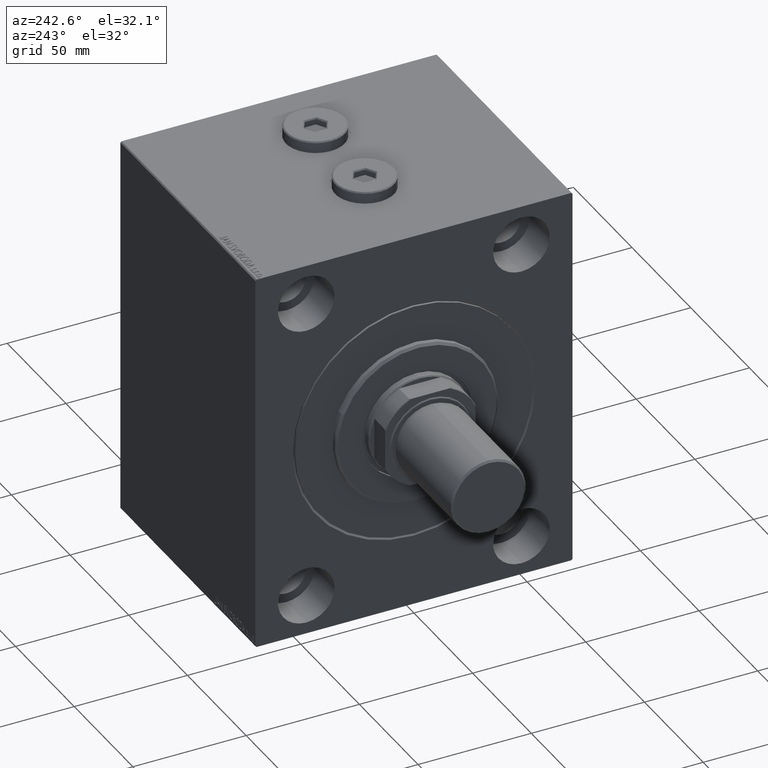
[diagram: clean part render]
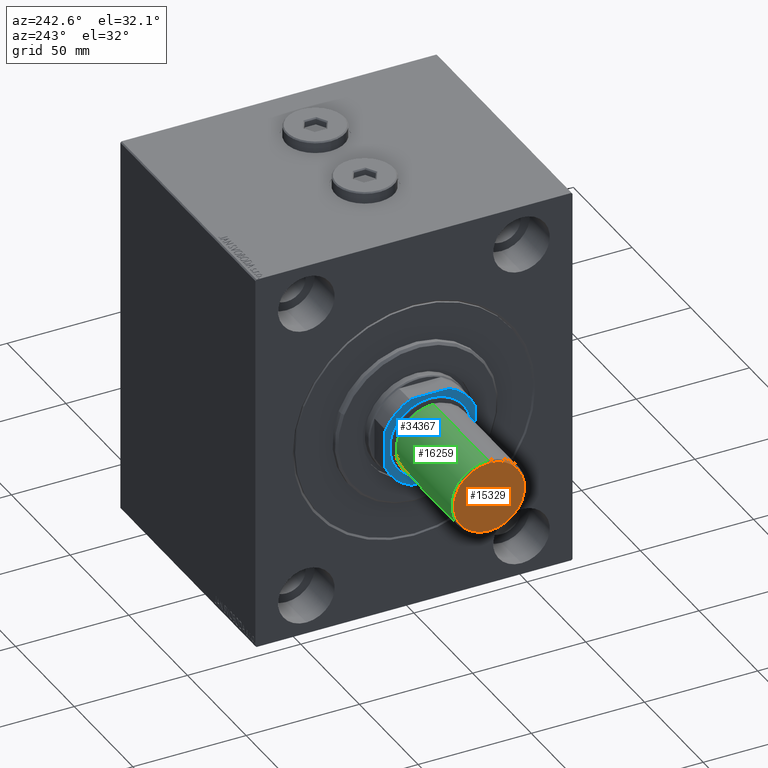
[diagram: same view with three faces highlighted in distinct colors, each labeled with its STEP entity id]
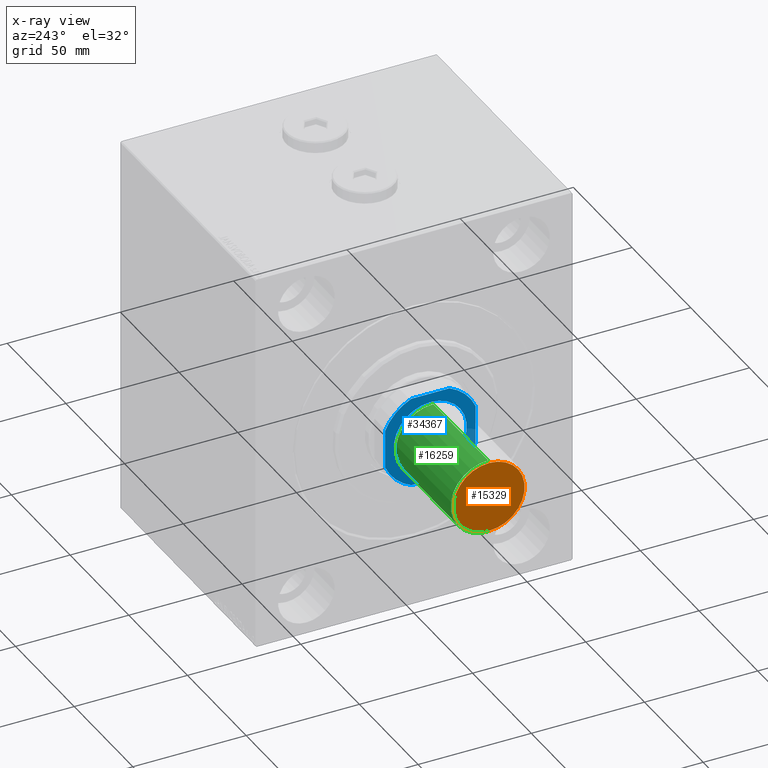
[diagram: x-ray of the same camera — body ghosted, the three highlighted faces saturated]
A machine part, auxiliary view with three faces highlighted in distinct colors.
The next image is the same camera in x-ray (body ghosted, the three faces saturated) — at least one of them is partly hidden behind the body in this view.
Their STEP definitions:

[orange] entity #15329 — the highlighted planar face has unit normal (1, 0, 0).
#1864 = FACE_OUTER_BOUND ( 'NONE', #21280, .T. ) ;
#2542 = DIRECTION ( 'NONE',  ( -0.000000000000000000, -0.000000000000000000, -1.000000000000000000 ) ) ;
#2770 = DIRECTION ( 'NONE',  ( 1.000000000000000000, 0.000000000000000000, 0.000000000000000000 ) ) ;
#8777 = CARTESIAN_POINT ( 'NONE',  ( 0.000000000000000000, 0.000000000000000000, 0.000000000000000000 ) ) ;
#8790 = ORIENTED_EDGE ( 'NONE', *, *, #23588, .T. ) ;
#8874 = VERTEX_POINT ( 'NONE', #23127 ) ;
#8967 = DIRECTION ( 'NONE',  ( -0.000000000000000000, -0.000000000000000000, -1.000000000000000000 ) ) ;
#10523 = VERTEX_POINT ( 'NONE', #27399 ) ;
#12698 = CIRCLE ( 'NONE', #16387, 15.69999999999999929 ) ;
#15153 = AXIS2_PLACEMENT_3D ( 'NONE', #8777, #26318, #15471 ) ;
#15329 = ADVANCED_FACE ( 'NONE', ( #1864 ), #32775, .F. ) ;
#15471 = DIRECTION ( 'NONE',  ( 1.000000000000000000, 0.000000000000000000, -0.000000000000000000 ) ) ;
#16387 = AXIS2_PLACEMENT_3D ( 'NONE', #22350, #8967, #39863 ) ;
#17013 = CIRCLE ( 'NONE', #18445, 15.69999999999999929 ) ;
#18445 = AXIS2_PLACEMENT_3D ( 'NONE', #34135, #2542, #2770 ) ;
#21280 = EDGE_LOOP ( 'NONE', ( #8790, #33888 ) ) ;
#22350 = CARTESIAN_POINT ( 'NONE',  ( 0.000000000000000000, 0.000000000000000000, 0.000000000000000000 ) ) ;
#23127 = CARTESIAN_POINT ( 'NONE',  ( 15.69999999999999929, 0.000000000000000000, 0.000000000000000000 ) ) ;
#23588 = EDGE_CURVE ( 'NONE', #8874, #10523, #17013, .T. ) ;
#26318 = DIRECTION ( 'NONE',  ( 0.000000000000000000, 0.000000000000000000, 1.000000000000000000 ) ) ;
#27399 = CARTESIAN_POINT ( 'NONE',  ( -15.69999999999999929, 1.971681346627238883E-15, 0.000000000000000000 ) ) ;
#28955 = EDGE_CURVE ( 'NONE', #10523, #8874, #12698, .T. ) ;
#32775 = PLANE ( 'NONE',  #15153 ) ;
#33888 = ORIENTED_EDGE ( 'NONE', *, *, #28955, .T. ) ;
#34135 = CARTESIAN_POINT ( 'NONE',  ( 0.000000000000000000, 0.000000000000000000, 0.000000000000000000 ) ) ;
#39863 = DIRECTION ( 'NONE',  ( 1.000000000000000000, 0.000000000000000000, 0.000000000000000000 ) ) ;

[blue] entity #34367 — the highlighted planar face has unit normal (-1, 0, 0).
#373 = EDGE_CURVE ( 'NONE', #1283, #32063, #24441, .T. ) ;
#1283 = VERTEX_POINT ( 'NONE', #17167 ) ;
#1385 = CARTESIAN_POINT ( 'NONE',  ( 16.04999999999996874, 0.000000000000000000, 64.99999999999998579 ) ) ;
#1919 = VECTOR ( 'NONE', #25470, 1000.000000000000000 ) ;
#2042 = EDGE_CURVE ( 'NONE', #22456, #21518, #8991, .T. ) ;
#4948 = LINE ( 'NONE', #43429, #1919 ) ;
#5549 = ORIENTED_EDGE ( 'NONE', *, *, #2042, .T. ) ;
#5974 = PLANE ( 'NONE',  #28323 ) ;
#6061 = DIRECTION ( 'NONE',  ( 1.000000000000000000, 0.000000000000000000, 0.000000000000000000 ) ) ;
#6146 = AXIS2_PLACEMENT_3D ( 'NONE', #44585, #41138, #36981 ) ;
#6435 = FACE_OUTER_BOUND ( 'NONE', #37888, .T. ) ;
#6673 = DIRECTION ( 'NONE',  ( -0.000000000000000000, 0.000000000000000000, 1.000000000000000000 ) ) ;
#7609 = CIRCLE ( 'NONE', #38517, 16.04999999999996874 ) ;
#8991 = CIRCLE ( 'NONE', #20775, 21.70000000000001705 ) ;
#9336 = EDGE_LOOP ( 'NONE', ( #16907, #13640 ) ) ;
#9438 = CARTESIAN_POINT ( 'NONE',  ( 0.000000000000000000, 0.000000000000000000, 64.99999999999998579 ) ) ;
#10134 = CARTESIAN_POINT ( 'NONE',  ( 0.000000000000000000, 0.000000000000000000, 64.99999999999998579 ) ) ;
#10153 = LINE ( 'NONE', #24218, #33660 ) ;
#10689 = EDGE_CURVE ( 'NONE', #43105, #36121, #31947, .T. ) ;
#10867 = CARTESIAN_POINT ( 'NONE',  ( -20.00000000000000000, -8.419619943916748284, 64.99999999999998579 ) ) ;
#11258 = ORIENTED_EDGE ( 'NONE', *, *, #373, .T. ) ;
#12140 = VERTEX_POINT ( 'NONE', #1385 ) ;
#12176 = CARTESIAN_POINT ( 'NONE',  ( 0.000000000000000000, 0.000000000000000000, 64.99999999999998579 ) ) ;
#13383 = AXIS2_PLACEMENT_3D ( 'NONE', #12176, #39616, #40307 ) ;
#13531 = VERTEX_POINT ( 'NONE', #39502 ) ;
#13640 = ORIENTED_EDGE ( 'NONE', *, *, #34898, .T. ) ;
#13696 = CARTESIAN_POINT ( 'NONE',  ( -8.419619943916726967, -20.00000000000001066, 64.99999999999998579 ) ) ;
#14780 = CARTESIAN_POINT ( 'NONE',  ( -20.00000000000000711, 19.99999999999998934, 64.99999999999998579 ) ) ;
#15174 = EDGE_CURVE ( 'NONE', #13531, #34965, #37214, .T. ) ;
#15490 = DIRECTION ( 'NONE',  ( 2.602085213965210642E-16, -1.000000000000000000, 0.000000000000000000 ) ) ;
#16802 = EDGE_CURVE ( 'NONE', #21518, #1283, #4948, .T. ) ;
#16907 = ORIENTED_EDGE ( 'NONE', *, *, #35550, .T. ) ;
#17167 = CARTESIAN_POINT ( 'NONE',  ( 8.419619943916702098, -20.00000000000001066, 64.99999999999998579 ) ) ;
#18214 = ORIENTED_EDGE ( 'NONE', *, *, #44715, .T. ) ;
#18679 = VECTOR ( 'NONE', #15490, 1000.000000000000000 ) ;
#18821 = CARTESIAN_POINT ( 'NONE',  ( 0.000000000000000000, 0.000000000000000000, 64.99999999999998579 ) ) ;
#19841 = CARTESIAN_POINT ( 'NONE',  ( 20.00000000000000000, -8.419619943916732296, 64.99999999999998579 ) ) ;
#20074 = CARTESIAN_POINT ( 'NONE',  ( -20.00000000000000711, 19.99999999999998934, 64.99999999999998579 ) ) ;
#20273 = CARTESIAN_POINT ( 'NONE',  ( 0.000000000000000000, 0.000000000000000000, 64.99999999999998579 ) ) ;
#20438 = VERTEX_POINT ( 'NONE', #28101 ) ;
#20731 = DIRECTION ( 'NONE',  ( 1.000000000000000000, 0.000000000000000000, 0.000000000000000000 ) ) ;
#20775 = AXIS2_PLACEMENT_3D ( 'NONE', #10134, #6673, #20731 ) ;
#21464 = LINE ( 'NONE', #14780, #30669 ) ;
#21518 = VERTEX_POINT ( 'NONE', #13696 ) ;
#22456 = VERTEX_POINT ( 'NONE', #10867 ) ;
#23498 = DIRECTION ( 'NONE',  ( 1.000000000000000000, 0.000000000000000000, 0.000000000000000000 ) ) ;
#24218 = CARTESIAN_POINT ( 'NONE',  ( 19.99999999999999289, 19.99999999999999289, 64.99999999999998579 ) ) ;
#24441 = CIRCLE ( 'NONE', #13383, 21.70000000000000639 ) ;
#25447 = AXIS2_PLACEMENT_3D ( 'NONE', #27513, #27284, #6061 ) ;
#25470 = DIRECTION ( 'NONE',  ( 1.000000000000000000, 0.000000000000000000, 0.000000000000000000 ) ) ;
#27284 = DIRECTION ( 'NONE',  ( -0.000000000000000000, 0.000000000000000000, 1.000000000000000000 ) ) ;
#27513 = CARTESIAN_POINT ( 'NONE',  ( 0.000000000000000000, 0.000000000000000000, 64.99999999999998579 ) ) ;
#27649 = ORIENTED_EDGE ( 'NONE', *, *, #32929, .T. ) ;
#28101 = CARTESIAN_POINT ( 'NONE',  ( -16.04999999999996874, 1.965558112631497866E-15, 64.99999999999998579 ) ) ;
#28323 = AXIS2_PLACEMENT_3D ( 'NONE', #9438, #34555, #23498 ) ;
#29140 = CARTESIAN_POINT ( 'NONE',  ( 8.419619943916742955, 19.99999999999999289, 64.99999999999998579 ) ) ;
#29214 = DIRECTION ( 'NONE',  ( -0.000000000000000000, 0.000000000000000000, 1.000000000000000000 ) ) ;
#29522 = ORIENTED_EDGE ( 'NONE', *, *, #43255, .T. ) ;
#30022 = LINE ( 'NONE', #20074, #18679 ) ;
#30669 = VECTOR ( 'NONE', #36442, 1000.000000000000000 ) ;
#31229 = AXIS2_PLACEMENT_3D ( 'NONE', #18821, #29214, #39107 ) ;
#31631 = ORIENTED_EDGE ( 'NONE', *, *, #16802, .T. ) ;
#31947 = CIRCLE ( 'NONE', #31229, 21.70000000000000639 ) ;
#32063 = VERTEX_POINT ( 'NONE', #19841 ) ;
#32929 = EDGE_CURVE ( 'NONE', #34965, #22456, #30022, .T. ) ;
#33660 = VECTOR ( 'NONE', #38500, 1000.000000000000000 ) ;
#34343 = DIRECTION ( 'NONE',  ( 0.000000000000000000, -0.000000000000000000, -1.000000000000000000 ) ) ;
#34367 = ADVANCED_FACE ( 'NONE', ( #41017, #6435 ), #5974, .T. ) ;
#34555 = DIRECTION ( 'NONE',  ( -0.000000000000000000, 0.000000000000000000, 1.000000000000000000 ) ) ;
#34898 = EDGE_CURVE ( 'NONE', #20438, #12140, #36302, .T. ) ;
#34965 = VERTEX_POINT ( 'NONE', #35571 ) ;
#35018 = DIRECTION ( 'NONE',  ( 1.000000000000000000, 0.000000000000000000, 0.000000000000000000 ) ) ;
#35550 = EDGE_CURVE ( 'NONE', #12140, #20438, #7609, .T. ) ;
#35571 = CARTESIAN_POINT ( 'NONE',  ( -20.00000000000000355, 8.419619943916735849, 64.99999999999998579 ) ) ;
#35691 = ORIENTED_EDGE ( 'NONE', *, *, #10689, .T. ) ;
#36121 = VERTEX_POINT ( 'NONE', #29140 ) ;
#36302 = CIRCLE ( 'NONE', #6146, 16.04999999999996874 ) ;
#36442 = DIRECTION ( 'NONE',  ( -1.000000000000000000, -8.673617379884035472E-17, -0.000000000000000000 ) ) ;
#36804 = ORIENTED_EDGE ( 'NONE', *, *, #15174, .T. ) ;
#36981 = DIRECTION ( 'NONE',  ( 1.000000000000000000, 0.000000000000000000, 0.000000000000000000 ) ) ;
#37214 = CIRCLE ( 'NONE', #25447, 21.70000000000001705 ) ;
#37888 = EDGE_LOOP ( 'NONE', ( #18214, #35691, #29522, #36804, #27649, #5549, #31631, #11258 ) ) ;
#38500 = DIRECTION ( 'NONE',  ( -2.602085213965210149E-16, 1.000000000000000000, -0.000000000000000000 ) ) ;
#38517 = AXIS2_PLACEMENT_3D ( 'NONE', #20273, #34343, #35018 ) ;
#39107 = DIRECTION ( 'NONE',  ( 1.000000000000000000, 0.000000000000000000, 0.000000000000000000 ) ) ;
#39502 = CARTESIAN_POINT ( 'NONE',  ( -8.419619943916771376, 19.99999999999999289, 64.99999999999998579 ) ) ;
#39616 = DIRECTION ( 'NONE',  ( -0.000000000000000000, 0.000000000000000000, 1.000000000000000000 ) ) ;
#40307 = DIRECTION ( 'NONE',  ( 1.000000000000000000, 0.000000000000000000, 0.000000000000000000 ) ) ;
#41017 = FACE_BOUND ( 'NONE', #9336, .T. ) ;
#41138 = DIRECTION ( 'NONE',  ( 0.000000000000000000, -0.000000000000000000, -1.000000000000000000 ) ) ;
#43105 = VERTEX_POINT ( 'NONE', #44312 ) ;
#43255 = EDGE_CURVE ( 'NONE', #36121, #13531, #21464, .T. ) ;
#43429 = CARTESIAN_POINT ( 'NONE',  ( -19.99999999999999645, -20.00000000000001066, 64.99999999999998579 ) ) ;
#44312 = CARTESIAN_POINT ( 'NONE',  ( 19.99999999999999289, 8.419619943916742955, 64.99999999999998579 ) ) ;
#44585 = CARTESIAN_POINT ( 'NONE',  ( 0.000000000000000000, 0.000000000000000000, 64.99999999999998579 ) ) ;
#44715 = EDGE_CURVE ( 'NONE', #32063, #43105, #10153, .T. ) ;

[green] entity #16259 — the highlighted cylindrical surface (partial cylindrical patch) has radius 16.5 mm, axis along (-1, -0, 0).
#46 = CARTESIAN_POINT ( 'NONE',  ( 16.50000000000000000, 2.020667218593133100E-15, 47.50000000000000000 ) ) ;
#6344 = AXIS2_PLACEMENT_3D ( 'NONE', #10459, #17847, #35137 ) ;
#8413 = CARTESIAN_POINT ( 'NONE',  ( 16.50000000000000000, 2.020667218593133100E-15, 47.50000000000000000 ) ) ;
#10427 = LINE ( 'NONE', #46, #20293 ) ;
#10459 = CARTESIAN_POINT ( 'NONE',  ( 0.000000000000000000, 0.000000000000000000, 0.7999999999999951594 ) ) ;
#10743 = CIRCLE ( 'NONE', #6344, 16.50000000000000000 ) ;
#11571 = LINE ( 'NONE', #40153, #34506 ) ;
#11872 = EDGE_LOOP ( 'NONE', ( #19620, #26238, #35395, #18940 ) ) ;
#12830 = AXIS2_PLACEMENT_3D ( 'NONE', #18211, #43760, #19104 ) ;
#14353 = DIRECTION ( 'NONE',  ( -0.000000000000000000, -0.000000000000000000, -1.000000000000000000 ) ) ;
#14585 = DIRECTION ( 'NONE',  ( -0.000000000000000000, -0.000000000000000000, -1.000000000000000000 ) ) ;
#15356 = VERTEX_POINT ( 'NONE', #26770 ) ;
#15858 = CARTESIAN_POINT ( 'NONE',  ( -16.50000000000000000, 0.000000000000000000, 0.7999999999999951594 ) ) ;
#16259 = ADVANCED_FACE ( 'NONE', ( #26497 ), #26725, .T. ) ;
#17847 = DIRECTION ( 'NONE',  ( -0.000000000000000000, -0.000000000000000000, 1.000000000000000000 ) ) ;
#18211 = CARTESIAN_POINT ( 'NONE',  ( 0.000000000000000000, 0.000000000000000000, 47.50000000000000000 ) ) ;
#18940 = ORIENTED_EDGE ( 'NONE', *, *, #20211, .F. ) ;
#19104 = DIRECTION ( 'NONE',  ( 1.000000000000000000, 0.000000000000000000, 0.000000000000000000 ) ) ;
#19620 = ORIENTED_EDGE ( 'NONE', *, *, #38161, .F. ) ;
#20211 = EDGE_CURVE ( 'NONE', #31624, #22239, #11571, .T. ) ;
#20293 = VECTOR ( 'NONE', #14353, 1000.000000000000000 ) ;
#21369 = VERTEX_POINT ( 'NONE', #8413 ) ;
#22239 = VERTEX_POINT ( 'NONE', #15858 ) ;
#23121 = CIRCLE ( 'NONE', #12830, 16.50000000000000000 ) ;
#26238 = ORIENTED_EDGE ( 'NONE', *, *, #41135, .T. ) ;
#26497 = FACE_OUTER_BOUND ( 'NONE', #11872, .T. ) ;
#26725 = CYLINDRICAL_SURFACE ( 'NONE', #26981, 16.50000000000000000 ) ;
#26770 = CARTESIAN_POINT ( 'NONE',  ( 16.50000000000000000, 2.020667218593133100E-15, 0.7999999999999951594 ) ) ;
#26981 = AXIS2_PLACEMENT_3D ( 'NONE', #40539, #37084, #29281 ) ;
#29281 = DIRECTION ( 'NONE',  ( -1.000000000000000000, 0.000000000000000000, 0.000000000000000000 ) ) ;
#31624 = VERTEX_POINT ( 'NONE', #34924 ) ;
#34506 = VECTOR ( 'NONE', #14585, 1000.000000000000000 ) ;
#34924 = CARTESIAN_POINT ( 'NONE',  ( -16.50000000000000000, 0.000000000000000000, 47.50000000000000000 ) ) ;
#35137 = DIRECTION ( 'NONE',  ( 1.000000000000000000, 0.000000000000000000, 0.000000000000000000 ) ) ;
#35395 = ORIENTED_EDGE ( 'NONE', *, *, #42109, .T. ) ;
#37084 = DIRECTION ( 'NONE',  ( -0.000000000000000000, -0.000000000000000000, -1.000000000000000000 ) ) ;
#38161 = EDGE_CURVE ( 'NONE', #21369, #31624, #23121, .T. ) ;
#40153 = CARTESIAN_POINT ( 'NONE',  ( -16.50000000000000000, 0.000000000000000000, 47.50000000000000000 ) ) ;
#40539 = CARTESIAN_POINT ( 'NONE',  ( 0.000000000000000000, 0.000000000000000000, 47.50000000000000000 ) ) ;
#41135 = EDGE_CURVE ( 'NONE', #21369, #15356, #10427, .T. ) ;
#42109 = EDGE_CURVE ( 'NONE', #15356, #22239, #10743, .T. ) ;
#43760 = DIRECTION ( 'NONE',  ( 0.000000000000000000, 0.000000000000000000, 1.000000000000000000 ) ) ;